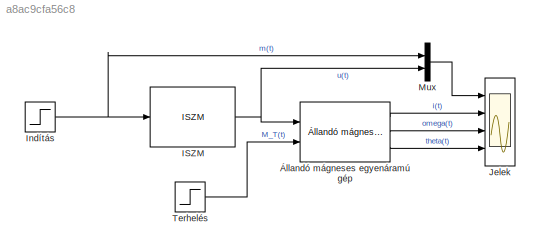
MODEL slx_a8ac9cfa56c8
KIND model
BLOCK [Reference] ISZM  REF=RI_MK/ISZM
  Ports = [1, 1]
  SourceBlock = RI_MK/ISZM
  SourceType = Impulzusszélesség-modulátor
  T_S = 100e-9
  U_T = 48
  f_ISZM = 25000
BLOCK [Step] Indítás
  After = 12
  SampleTime = 0
  Time = 1e-3
BLOCK [Scope] Jelek
  DataFormat = StructureWithTime
  Floating = off
  LegendLocations = 0.94444       0.926    0.039583     0.03666\n0.94757     0.70367    0.036458    0.020706\n0.93194      0.4664    0.052083    0.020706\n0.93663     0.22811    0.047396    0.020706
  LimitDataPoints = off
  NumInputPorts = 4
  Ports = [4]
  SampleTime = 0
  ShowLegends = on
  YMax = 5~5~5~5
  YMin = -5~-5~-5~-5
  ZoomMode = xonly
BLOCK [Mux] Mux
  DisplayOption = bar
  Inputs = 2
  Ports = [2, 1]
BLOCK [Step] Terhelés
  After = 0.1
  SampleTime = 0
  Time = 15e-3
BLOCK [Reference] Állandó mágneses egyenáramú gép  REF=RI_MK/Állandó mágneses egyenáramú gép
  B = 5.7301e-06
  J = 99.5e-7
  L = 658e-6
  Ports = [2, 3]
  R = 1.76
  SourceBlock = RI_MK/Állandó mágneses egyenáramú gép
  SourceType = Állandó mágneses egyenáramú gép
  i_0 = 0
  k_E = 68.3e-3
  k_T = 68.3e-3
  omega_0 = 0
  theta_0 = 0
NET ISZM:1 -> Mux:2, Állandó mágneses egyenáramú gép:1
NET Indítás:1 -> ISZM:1, Mux:1
LINE Mux:1 -> Jelek:1
LINE Terhelés:1 -> Állandó mágneses egyenáramú gép:2
LINE Állandó mágneses egyenáramú gép:1 -> Jelek:2
LINE Állandó mágneses egyenáramú gép:2 -> Jelek:3
LINE Állandó mágneses egyenáramú gép:3 -> Jelek:4
note: NET lines group one-source signal fan-out (src -> all destinations, sorted); 1:1 wires keep LINE
